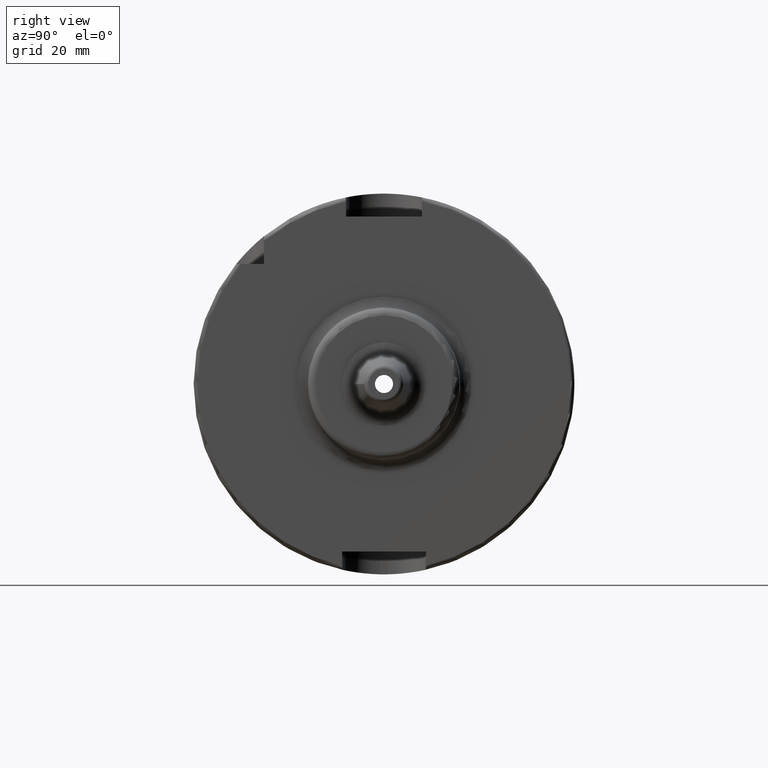
[diagram: clean part render]
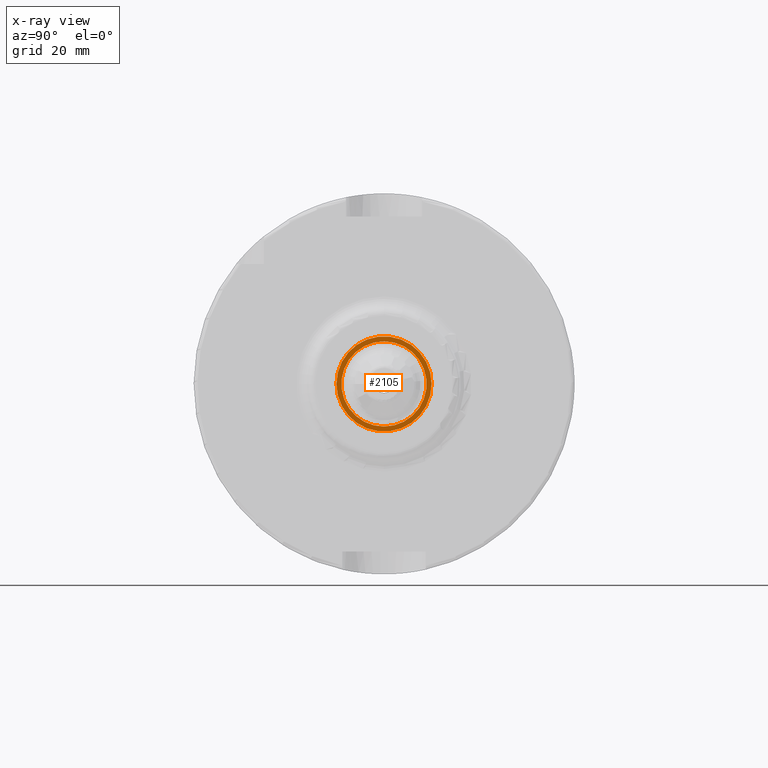
[diagram: x-ray — body ghosted, one internal face saturated and labeled with its STEP entity id]
A machine part, right view, then the same camera in x-ray: the body is ghosted and one INTERNAL B-rep face — a face not visible from any outside direction — is saturated and labeled: STEP entity #2105.
In plain terms, the highlighted planar face has unit normal (-1, 0, 0).
Its self-contained STEP definition (entity closure, byte-faithful):
#142=FACE_BOUND('',#645,.T.);
#177=PLANE('',#2368);
#515=FACE_OUTER_BOUND('',#644,.T.);
#644=EDGE_LOOP('',(#1895));
#645=EDGE_LOOP('',(#1896));
#774=CIRCLE('',#2359,11.188101);
#779=CIRCLE('',#2367,12.5);
#994=VERTEX_POINT('',#4564);
#998=VERTEX_POINT('',#4577);
#1299=EDGE_CURVE('',#994,#994,#774,.T.);
#1305=EDGE_CURVE('',#998,#998,#779,.T.);
#1895=ORIENTED_EDGE('',*,*,#1305,.F.);
#1896=ORIENTED_EDGE('',*,*,#1299,.T.);
#2105=ADVANCED_FACE('',(#515,#142),#177,.F.);
#2359=AXIS2_PLACEMENT_3D('',#4566,#2934,#2935);
#2367=AXIS2_PLACEMENT_3D('',#4579,#2951,#2952);
#2368=AXIS2_PLACEMENT_3D('',#4580,#2953,#2954);
#2934=DIRECTION('center_axis',(-1.,0.,0.));
#2935=DIRECTION('ref_axis',(0.,0.,1.));
#2951=DIRECTION('center_axis',(-1.,0.,0.));
#2952=DIRECTION('ref_axis',(0.,0.,1.));
#2953=DIRECTION('center_axis',(-1.,0.,0.));
#2954=DIRECTION('ref_axis',(0.,0.,1.));
#4564=CARTESIAN_POINT('',(22.5,-1.37014720781873E-15,-11.188101));
#4566=CARTESIAN_POINT('Origin',(22.5,0.,0.));
#4577=CARTESIAN_POINT('',(22.5,-12.5,1.53080849893419E-15));
#4579=CARTESIAN_POINT('Origin',(22.5,0.,0.));
#4580=CARTESIAN_POINT('Origin',(22.5,10.,0.));